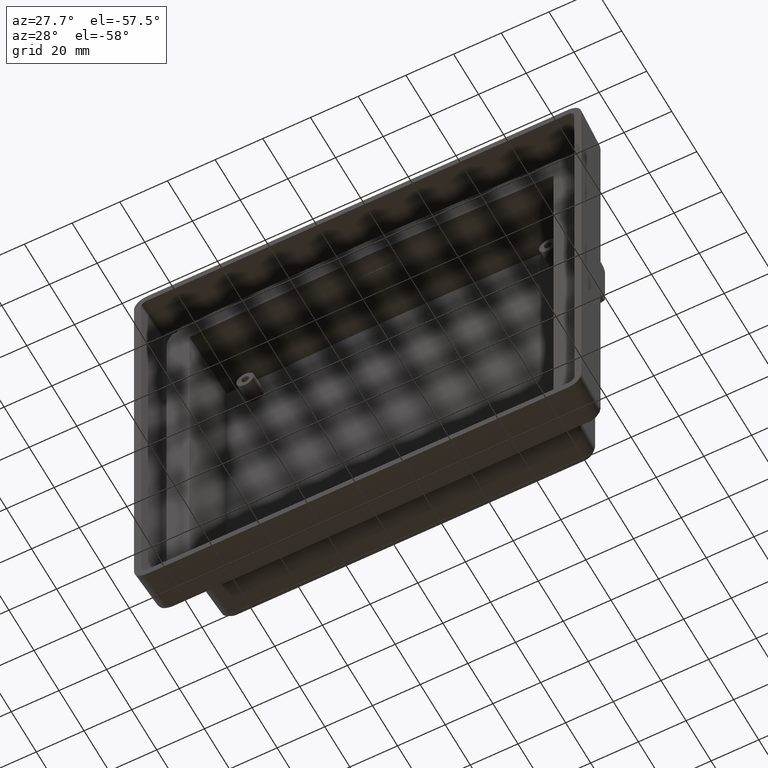
[diagram: clean part render]
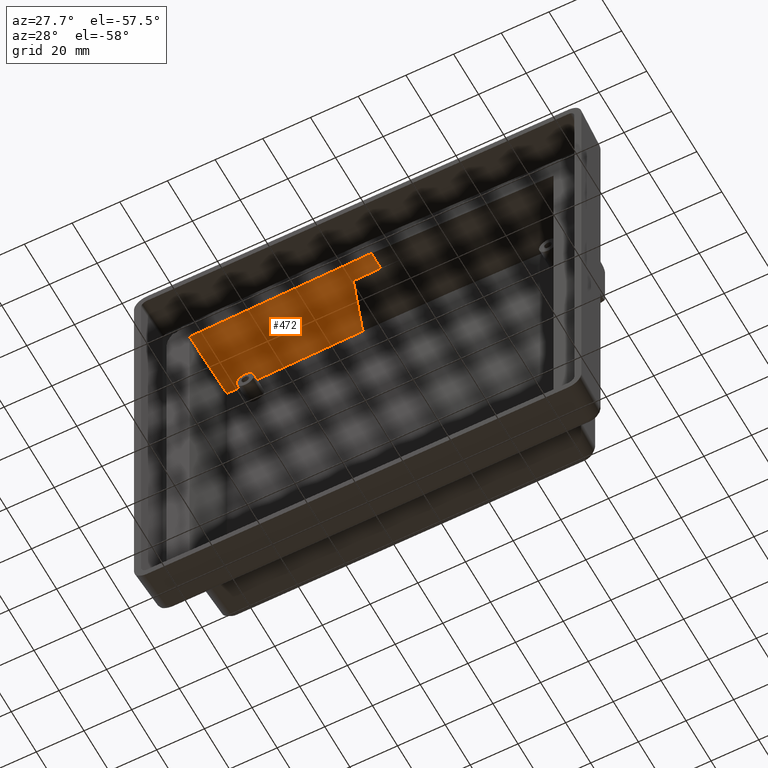
[diagram: same view with one face highlighted and labeled with its STEP entity id]
A machine part, auxiliary view. The second image highlights one B-rep face of the part: STEP entity #472.
In plain terms, the highlighted planar face has unit normal (0.0262, -0.0349, -0.999).
Its self-contained STEP definition (entity closure, byte-faithful):
#408 = DIRECTION ( 'NONE',  ( -0.03487934512674303200, -0.9988137613916394700, 0.03397795370846537500 ) ) ;
#472 = ADVANCED_FACE ( 'NONE', ( #724 ), #3201, .T. ) ;
#634 = CARTESIAN_POINT ( 'NONE',  ( -75.29768461834747500, 31.00000000000000400, 73.44724791217352300 ) ) ;
#640 = ORIENTED_EDGE ( 'NONE', *, *, #5979, .T. ) ;
#644 = AXIS2_PLACEMENT_3D ( 'NONE', #2537, #1868, #1190 ) ;
#653 = VERTEX_POINT ( 'NONE', #3654 ) ;
#704 = ORIENTED_EDGE ( 'NONE', *, *, #983, .F. ) ;
#724 = FACE_OUTER_BOUND ( 'NONE', #1945, .T. ) ;
#923 = EDGE_CURVE ( 'NONE', #653, #2648, #4719, .T. ) ;
#960 = VECTOR ( 'NONE', #2162, 1000.000000000000100 ) ;
#983 = EDGE_CURVE ( 'NONE', #4561, #4124, #1781, .T. ) ;
#1098 = CARTESIAN_POINT ( 'NONE',  ( -76.44955755290430900, 3.469446951953614200E-015, 74.50000000000000000 ) ) ;
#1190 = DIRECTION ( 'NONE',  ( 0.0000000000000000000, 0.9993904096895385200, -0.03491144540944078600 ) ) ;
#1303 = LINE ( 'NONE', #634, #1683 ) ;
#1399 = ORIENTED_EDGE ( 'NONE', *, *, #5867, .T. ) ;
#1437 = ORIENTED_EDGE ( 'NONE', *, *, #4046, .F. ) ;
#1453 = ORIENTED_EDGE ( 'NONE', *, *, #923, .F. ) ;
#1479 = CARTESIAN_POINT ( 'NONE',  ( -18.04811854180389100, 31.00000000000000400, 74.94638055932387000 ) ) ;
#1683 = VECTOR ( 'NONE', #6432, 1000.000000000000200 ) ;
#1686 = CARTESIAN_POINT ( 'NONE',  ( -18.04857567971769300, 30.00000000000000400, 74.98130132881561800 ) ) ;
#1702 = VECTOR ( 'NONE', #408, 1000.000000000000000 ) ;
#1781 = LINE ( 'NONE', #1098, #1702 ) ;
#1868 = DIRECTION ( 'NONE',  ( 0.02616100201824145600, -0.03489949670250105200, -0.9990483607430191700 ) ) ;
#1945 = EDGE_LOOP ( 'NONE', ( #1453, #640, #1437, #704, #3285, #1399, #5649 ) ) ;
#2162 = DIRECTION ( 'NONE',  ( -1.084573375948208100E-019, -0.9993904096895385200, 0.03491144540944078600 ) ) ;
#2249 = CARTESIAN_POINT ( 'NONE',  ( 1.387778780781445700E-014, 3.000000000000000000, 76.39710389787147400 ) ) ;
#2537 = CARTESIAN_POINT ( 'NONE',  ( -76.44955755290430900, 3.469446951953614200E-015, 74.50000000000000000 ) ) ;
#2648 = VERTEX_POINT ( 'NONE', #4430 ) ;
#2678 = VERTEX_POINT ( 'NONE', #1479 ) ;
#2824 = CARTESIAN_POINT ( 'NONE',  ( 0.0000000000000000000, 3.469446951953614200E-015, 76.50190211807938600 ) ) ;
#3158 = CARTESIAN_POINT ( 'NONE',  ( -76.34479524442906500, 3.000000000000000000, 74.39794507738521600 ) ) ;
#3193 = VECTOR ( 'NONE', #3269, 1000.000000000000100 ) ;
#3201 = PLANE ( 'NONE',  #644 ) ;
#3269 = DIRECTION ( 'NONE',  ( 0.9996573249755572600, -0.0000000000000000000, 0.02617694830787313900 ) ) ;
#3285 = ORIENTED_EDGE ( 'NONE', *, *, #4950, .F. ) ;
#3413 = DIRECTION ( 'NONE',  ( -0.9996573249755572600, -0.0000000000000000000, -0.02617694830787313900 ) ) ;
#3477 = LINE ( 'NONE', #2824, #960 ) ;
#3654 = CARTESIAN_POINT ( 'NONE',  ( -6.381832109244735800E-017, 10.24999999999998200, 76.14384153236900900 ) ) ;
#3918 = CARTESIAN_POINT ( 'NONE',  ( -76.44681519537073200, 3.000000000000000000, 74.39527359095136200 ) ) ;
#4046 = EDGE_CURVE ( 'NONE', #4124, #6357, #4570, .T. ) ;
#4073 = CARTESIAN_POINT ( 'NONE',  ( -76.44018783133127200, 10.24999999999998200, 74.14218476908385500 ) ) ;
#4109 = VECTOR ( 'NONE', #4556, 1000.000000000000100 ) ;
#4124 = VERTEX_POINT ( 'NONE', #3158 ) ;
#4430 = CARTESIAN_POINT ( 'NONE',  ( -11.45653778910758000, 10.24999999999998200, 75.84384153236901200 ) ) ;
#4476 = CARTESIAN_POINT ( 'NONE',  ( -75.36701369866013100, 31.00000000000000400, 73.44543246631398900 ) ) ;
#4556 = DIRECTION ( 'NONE',  ( -0.0004568593900575191100, -0.9993907227224125800, 0.03489949306038061400 ) ) ;
#4561 = VERTEX_POINT ( 'NONE', #4476 ) ;
#4563 = DIRECTION ( 'NONE',  ( -0.3163326804380926500, 0.9477449223329781300, -0.04139078978358404200 ) ) ;
#4570 = LINE ( 'NONE', #3918, #3193 ) ;
#4719 = LINE ( 'NONE', #4073, #6263 ) ;
#4950 = EDGE_CURVE ( 'NONE', #2678, #4561, #1303, .T. ) ;
#5212 = CARTESIAN_POINT ( 'NONE',  ( -18.04856814550213100, 30.01648127476477900, 74.98072579001862400 ) ) ;
#5220 = CARTESIAN_POINT ( 'NONE',  ( -14.90477068503561700, 20.58103887214997500, 75.39265488063726700 ) ) ;
#5490 = EDGE_CURVE ( 'NONE', #2648, #6006, #5878, .T. ) ;
#5649 = ORIENTED_EDGE ( 'NONE', *, *, #5490, .F. ) ;
#5867 = EDGE_CURVE ( 'NONE', #2678, #6006, #5870, .T. ) ;
#5870 = LINE ( 'NONE', #5212, #4109 ) ;
#5878 = LINE ( 'NONE', #5220, #6011 ) ;
#5979 = EDGE_CURVE ( 'NONE', #653, #6357, #3477, .T. ) ;
#6006 = VERTEX_POINT ( 'NONE', #1686 ) ;
#6011 = VECTOR ( 'NONE', #4563, 1000.000000000000100 ) ;
#6263 = VECTOR ( 'NONE', #3413, 1000.000000000000100 ) ;
#6357 = VERTEX_POINT ( 'NONE', #2249 ) ;
#6432 = DIRECTION ( 'NONE',  ( -0.9996573249755572600, 0.0000000000000000000, -0.02617694830787299600 ) ) ;